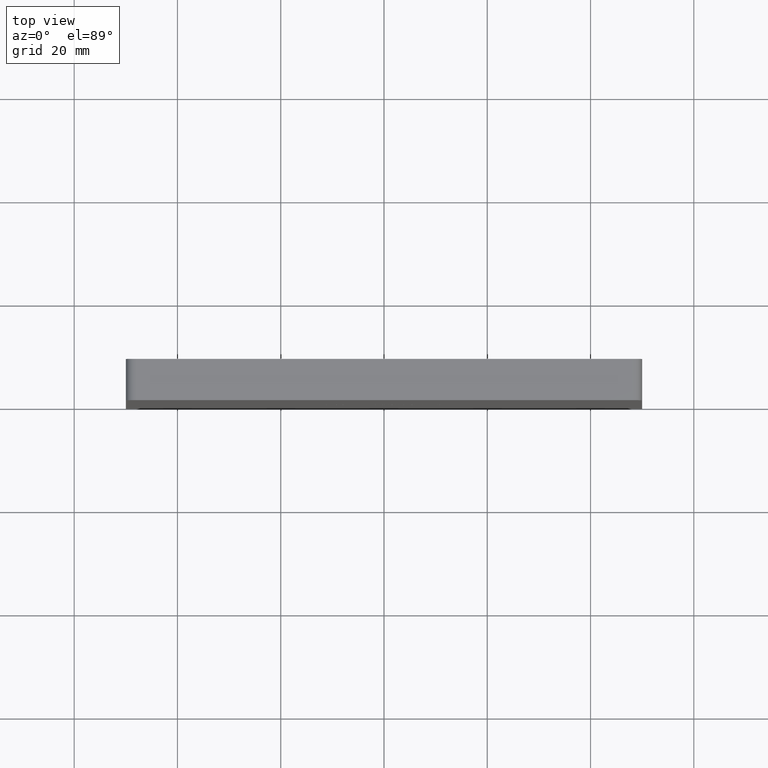
[diagram: clean part render]
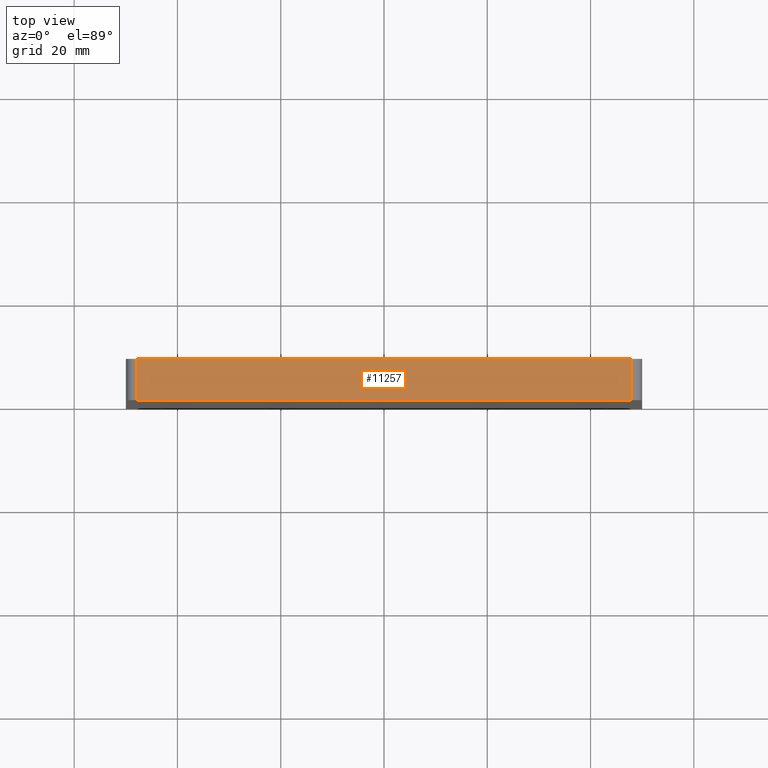
[diagram: same view with one face highlighted and labeled with its STEP entity id]
A machine part, top view. The second image highlights one B-rep face of the part: STEP entity #11257.
In plain terms, the highlighted planar face has unit normal (0, 0, -1).
Its self-contained STEP definition (entity closure, byte-faithful):
#670 = ORIENTED_EDGE ( 'NONE', *, *, #14159, .T. ) ;
#1147 = CARTESIAN_POINT ( 'NONE',  ( -47.99999999999998579, 8.000000000000000000, 50.00000000000000711 ) ) ;
#1517 = DIRECTION ( 'NONE',  ( 1.000000000000000000, 0.000000000000000000, 0.000000000000000000 ) ) ;
#1664 = VECTOR ( 'NONE', #2669, 1000.000000000000000 ) ;
#1857 = FACE_OUTER_BOUND ( 'NONE', #10564, .T. ) ;
#2669 = DIRECTION ( 'NONE',  ( 1.000000000000000000, 0.000000000000000000, 0.000000000000000000 ) ) ;
#3605 = EDGE_CURVE ( 'NONE', #6111, #4831, #4677, .T. ) ;
#3981 = CARTESIAN_POINT ( 'NONE',  ( -49.99999999999998579, 8.000000000000000000, 50.00000000000000711 ) ) ;
#4151 = DIRECTION ( 'NONE',  ( -1.000000000000000000, 0.000000000000000000, -0.000000000000000000 ) ) ;
#4677 = LINE ( 'NONE', #13018, #6115 ) ;
#4831 = VERTEX_POINT ( 'NONE', #13339 ) ;
#5217 = PLANE ( 'NONE',  #9734 ) ;
#5274 = CARTESIAN_POINT ( 'NONE',  ( -47.99999999999998579, 0.000000000000000000, 50.00000000000000711 ) ) ;
#5387 = LINE ( 'NONE', #12956, #13891 ) ;
#6111 = VERTEX_POINT ( 'NONE', #9535 ) ;
#6115 = VECTOR ( 'NONE', #14214, 1000.000000000000000 ) ;
#6276 = CARTESIAN_POINT ( 'NONE',  ( -49.99999999999998579, 8.000000000000000000, 50.00000000000000711 ) ) ;
#6392 = VECTOR ( 'NONE', #1517, 1000.000000000000000 ) ;
#7264 = ORIENTED_EDGE ( 'NONE', *, *, #8056, .T. ) ;
#7445 = DIRECTION ( 'NONE',  ( 0.000000000000000000, 0.000000000000000000, -1.000000000000000000 ) ) ;
#8056 = EDGE_CURVE ( 'NONE', #13264, #6111, #10910, .T. ) ;
#8191 = LINE ( 'NONE', #3981, #1664 ) ;
#9535 = CARTESIAN_POINT ( 'NONE',  ( 48.00000000000001421, 0.000000000000000000, 50.00000000000000711 ) ) ;
#9734 = AXIS2_PLACEMENT_3D ( 'NONE', #6276, #7445, #4151 ) ;
#10564 = EDGE_LOOP ( 'NONE', ( #13126, #670, #7264, #12450 ) ) ;
#10650 = CARTESIAN_POINT ( 'NONE',  ( -49.99999999999998579, 0.000000000000000000, 50.00000000000000711 ) ) ;
#10910 = LINE ( 'NONE', #10650, #6392 ) ;
#11257 = ADVANCED_FACE ( 'NONE', ( #1857 ), #5217, .F. ) ;
#11620 = EDGE_CURVE ( 'NONE', #14640, #4831, #8191, .T. ) ;
#12450 = ORIENTED_EDGE ( 'NONE', *, *, #3605, .T. ) ;
#12956 = CARTESIAN_POINT ( 'NONE',  ( -47.99999999999998579, 8.000000000000000000, 50.00000000000000711 ) ) ;
#13018 = CARTESIAN_POINT ( 'NONE',  ( 48.00000000000001421, 8.000000000000000000, 50.00000000000000711 ) ) ;
#13126 = ORIENTED_EDGE ( 'NONE', *, *, #11620, .F. ) ;
#13264 = VERTEX_POINT ( 'NONE', #5274 ) ;
#13339 = CARTESIAN_POINT ( 'NONE',  ( 48.00000000000001421, 8.000000000000000000, 50.00000000000000711 ) ) ;
#13891 = VECTOR ( 'NONE', #14011, 1000.000000000000000 ) ;
#14011 = DIRECTION ( 'NONE',  ( 0.000000000000000000, -1.000000000000000000, 0.000000000000000000 ) ) ;
#14159 = EDGE_CURVE ( 'NONE', #14640, #13264, #5387, .T. ) ;
#14214 = DIRECTION ( 'NONE',  ( -0.000000000000000000, 1.000000000000000000, -0.000000000000000000 ) ) ;
#14640 = VERTEX_POINT ( 'NONE', #1147 ) ;